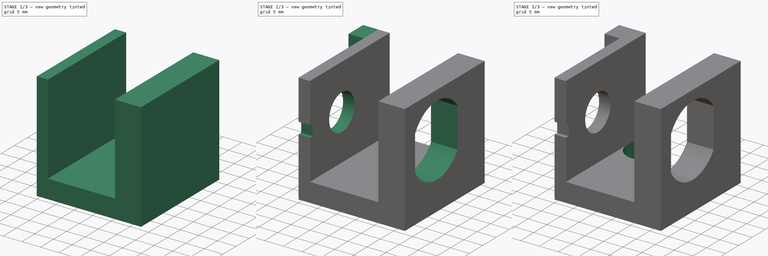
[diagram: build sequence overview — one tinted view per stage of 3, left to right]
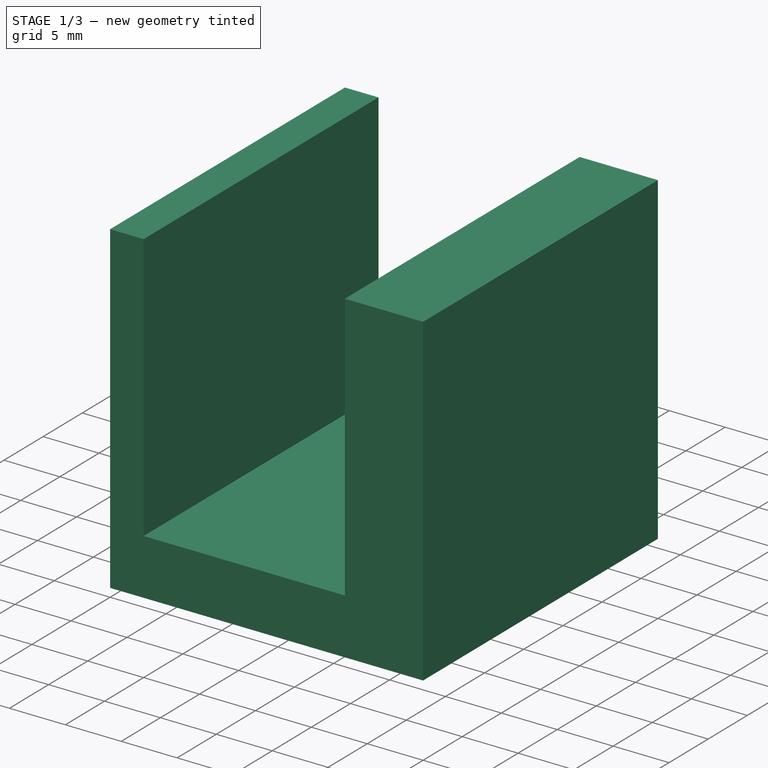
[diagram: stage 1 of 3 — iso view after this stage's code; geometry added in this stage tinted green]
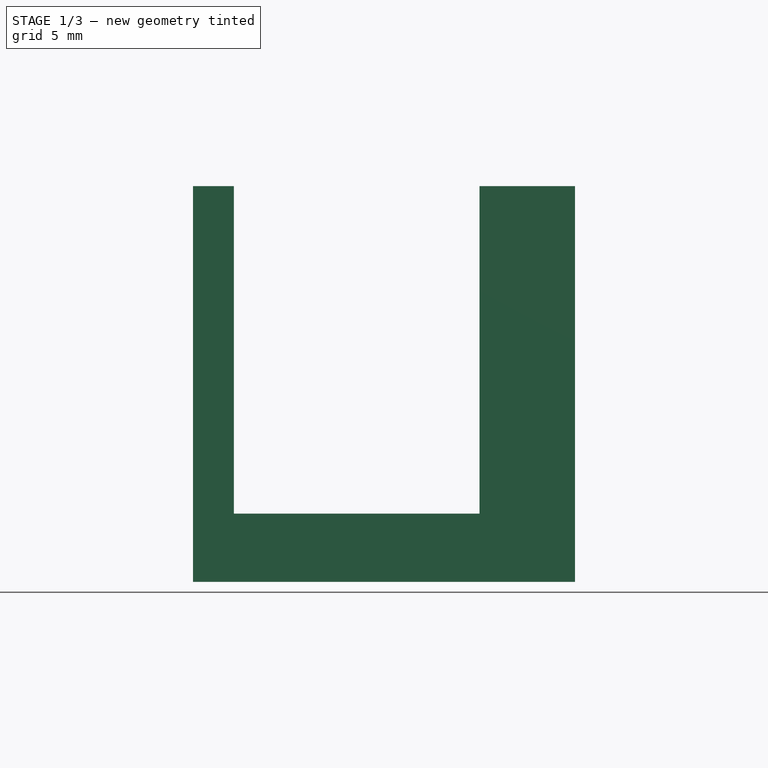
[diagram: stage 1 of 3 — front view after this stage's code; geometry added in this stage tinted green]
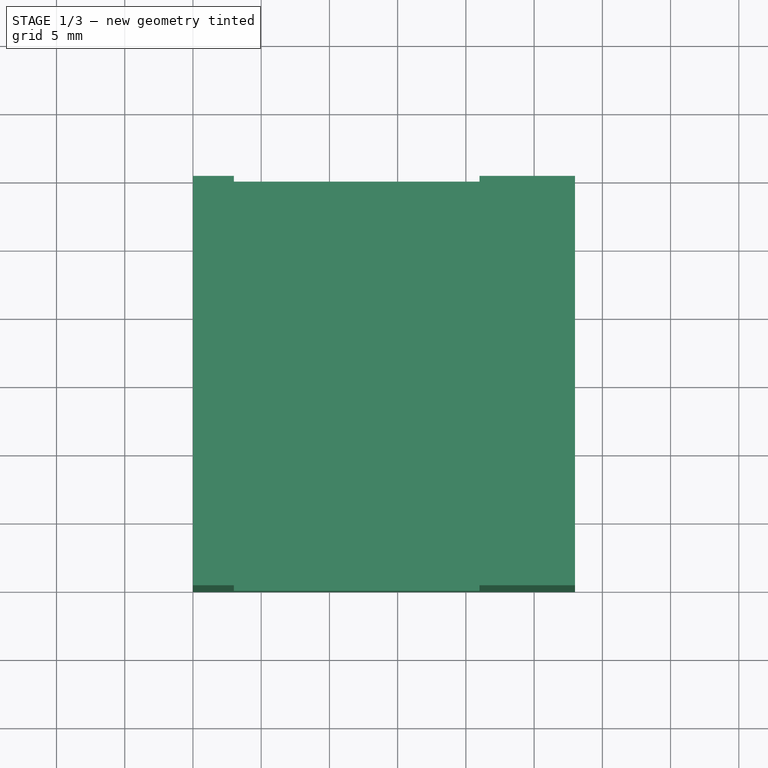
[diagram: stage 1 of 3 — top view after this stage's code; geometry added in this stage tinted green]
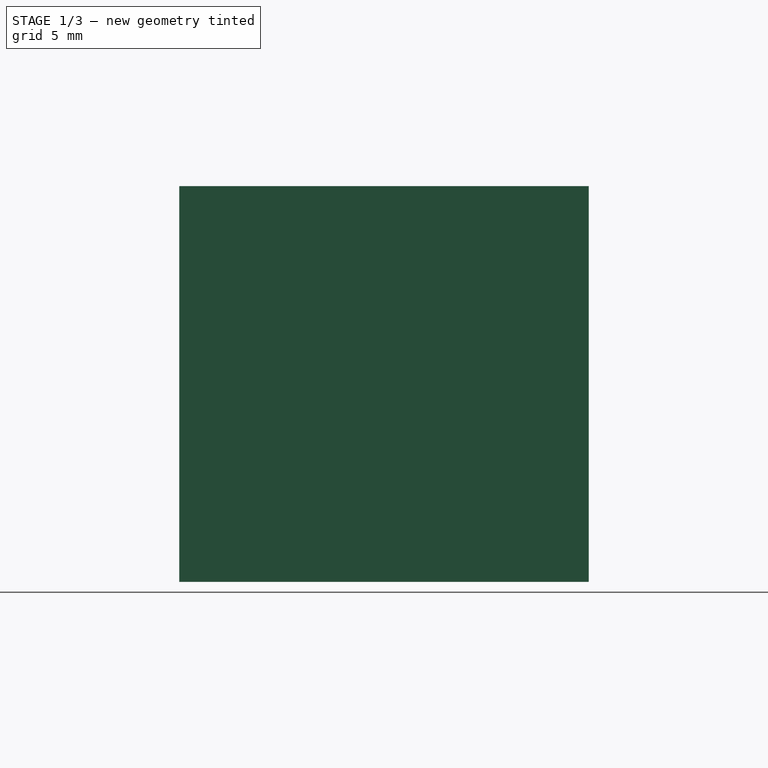
[diagram: stage 1 of 3 — right view after this stage's code; geometry added in this stage tinted green]
FCSTD DOCUMENT  (FreeCAD 0.16R6706 (Git))
Label: key_switch
License: All rights reserved
LicenseURL: http://en.wikipedia.org/wiki/All_rights_reserved
objects: Sketcher::SketchObject×6, PartDesign::Pocket×4, PartDesign::Pad×2, Part::Box×1
note: 19 computed .brp shape members not serialized (recipe doc carries the construction recipe); baked Part::Feature solids carry a one-line shape summary decoded from their .brp

FEATURE [Part::Box] Box  label="Cube"
  Height = 5
  Length = 28
  Width = 30
FEATURE [Sketcher::SketchObject] Sketch  label="Sketch (base)"
  ExternalGeometry = -> [Box]
  Placement = pos=(0,0,5) rot=(0,0,1;0rad)
  Support = -> Box [Face6]
  sketch-geometry (9):
    g0: LineSegment StartX=0 StartY=0 StartZ=0 EndX=3 EndY=0 EndZ=0
    g1: LineSegment StartX=0 StartY=30 StartZ=0 EndX=3 EndY=30 EndZ=0
    g2: LineSegment StartX=3 StartY=0 StartZ=0 EndX=3 EndY=30 EndZ=0
    g3: LineSegment StartX=0 StartY=0 StartZ=0 EndX=0 EndY=30 EndZ=0
    g4: LineSegment StartX=28 StartY=30 StartZ=0 EndX=21 EndY=30 EndZ=0
    g5: LineSegment StartX=21 StartY=30 StartZ=0 EndX=21 EndY=0 EndZ=0
    g6: LineSegment StartX=21 StartY=0 StartZ=0 EndX=28 EndY=0 EndZ=0
    g7: LineSegment StartX=28 StartY=0 StartZ=0 EndX=28 EndY=30 EndZ=0
    g8: LineSegment StartX=21 StartY=29.6495 StartZ=0 EndX=3 EndY=29.6495 EndZ=0
  constraints (25):
    c: Coincident(g0,g-1)
    c: Horizontal(g0)
    c: Coincident(g2,g0)
    c: Coincident(g2,g1)
    c: Vertical(g2)
    c: Horizontal(g1)
    c: Distance(g1) = 3
    c: Coincident(g3,g-1)
    c: Vertical(g3)
    c: Coincident(g1,g3)
    c: Coincident(g1,g-3)
    c: Coincident(g4,g5)
    c: Coincident(g5,g6)
    c: Coincident(g6,g7)
    c: Coincident(g7,g4)
    c: Horizontal(g4)
    c: Horizontal(g6)
    c: Vertical(g5)
    c: Vertical(g7)
    c: Coincident(g4,g-3)
    c: PointOnObject(g5,g-1)
    c: DistanceX(g4,g4) = 7
    c: PointOnObject(g8,g5)
    c: PointOnObject(g8,g2)
    c: Horizontal(g8)
FEATURE [PartDesign::Pad] Pad  label="Pad (base)"
  Length = 24
  Length2 = 100
  Sketch = -> Sketch
  Type = 0
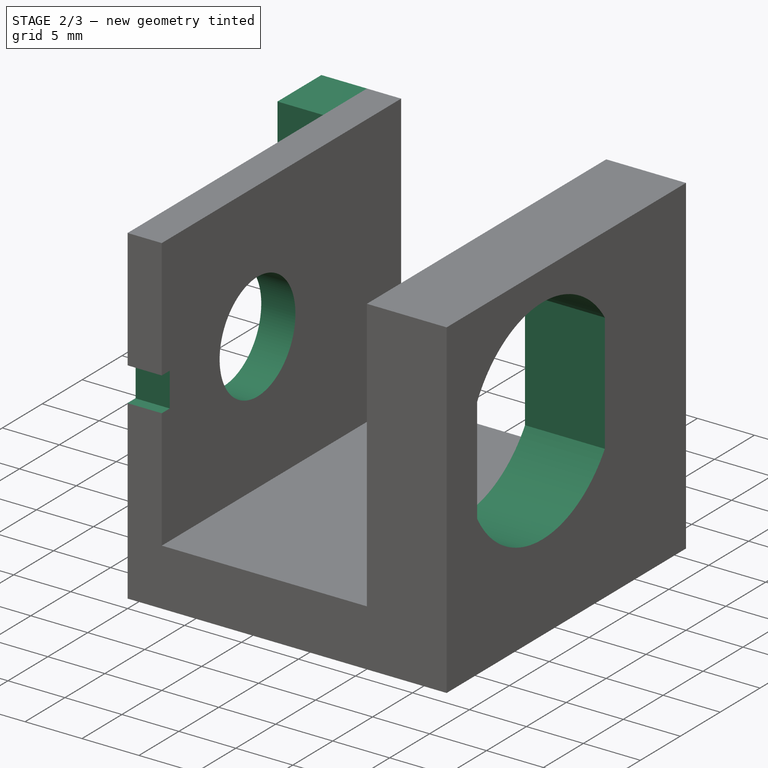
[diagram: stage 2 of 3 — iso view after this stage's code; geometry added in this stage tinted green]
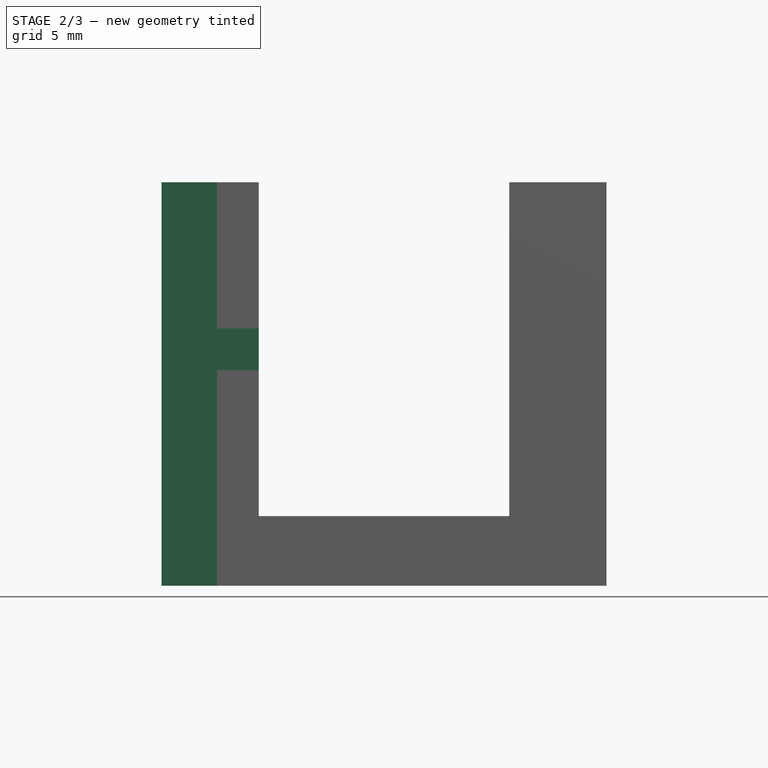
[diagram: stage 2 of 3 — front view after this stage's code; geometry added in this stage tinted green]
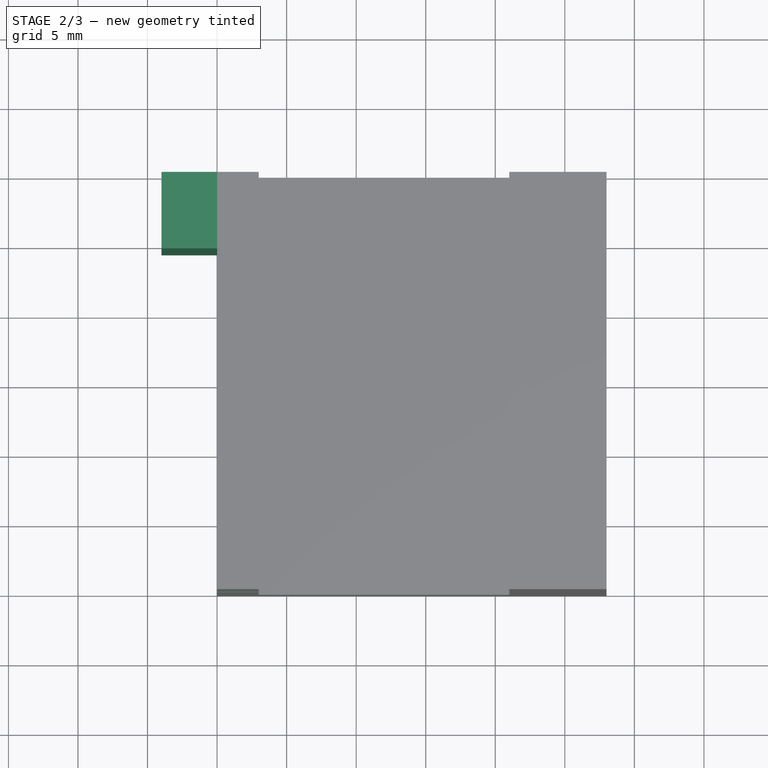
[diagram: stage 2 of 3 — top view after this stage's code; geometry added in this stage tinted green]
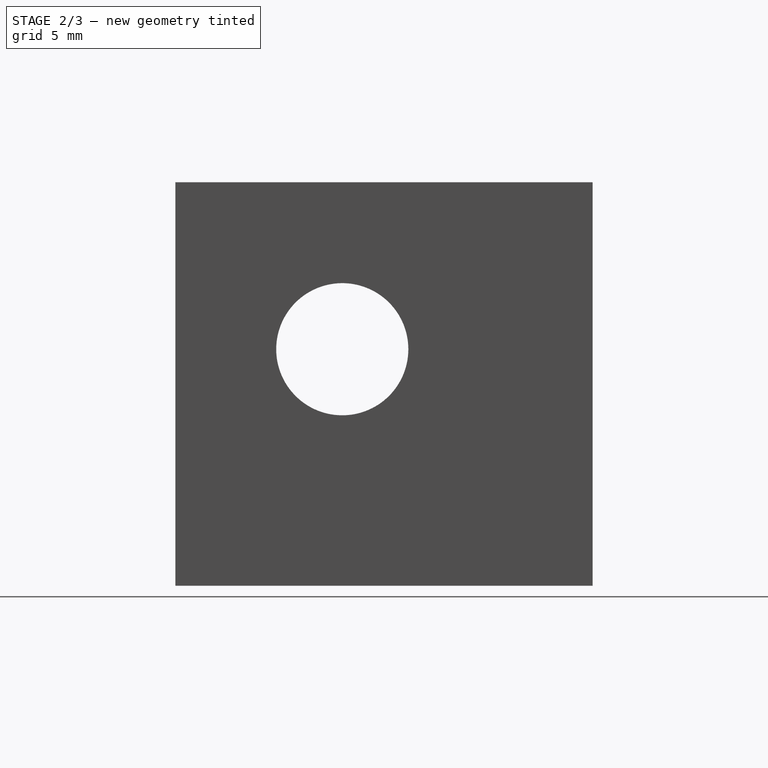
[diagram: stage 2 of 3 — right view after this stage's code; geometry added in this stage tinted green]
FEATURE [Sketcher::SketchObject] Sketch002  label="Sketch (switch mount)"
  ExternalGeometry = -> [Pad]
  Placement = pos=(0,0,0) rot=(0.57735,-0.57735,-0.57735;2.0944rad)
  Support = -> Pad [Face6]
  expr: Constraints[2] = 4.75
  sketch-geometry (6):
    g0: Circle [constr] CenterX=-12 CenterY=17 CenterZ=0 NormalX=0 NormalY=0 NormalZ=1 Radius=12
    g1: Circle CenterX=-12 CenterY=17 CenterZ=0 NormalX=0 NormalY=0 NormalZ=1 Radius=4.75
    g2: LineSegment StartX=-1 StartY=18.5 StartZ=0 EndX=0 EndY=18.5 EndZ=0
    g3: LineSegment StartX=0 StartY=18.5 StartZ=0 EndX=0 EndY=15.5 EndZ=0
    g4: LineSegment StartX=0 StartY=15.5 StartZ=0 EndX=-1 EndY=15.5 EndZ=0
    g5: LineSegment StartX=-1 StartY=15.5 StartZ=0 EndX=-1 EndY=18.5 EndZ=0
  constraints (17):
    c: Coincident(g1,g0)
    c: Radius(g0) = 12
    c: Radius(g1) = 4.75
    c: Tangent(g0,g-2)
    c: Coincident(g2,g3)
    c: Coincident(g3,g4)
    c: Coincident(g4,g5)
    c: Coincident(g5,g2)
    c: Horizontal(g2)
    c: Horizontal(g4)
    c: Vertical(g3)
    c: Vertical(g5)
    c: DistanceY(g3,g3) = 3
    c: Tangent(g3,g0)
    c: DistanceX(g2,g2) = 1
    c: DistanceY(g0,g2) = 1.5
    c: Tangent(g-3,g0)
FEATURE [PartDesign::Pocket] Pocket  label="Pocket (switch mount)"
  Length = 8
  Midplane = true
  Sketch = -> Sketch002
  Type = 0
FEATURE [Sketcher::SketchObject] Sketch001  label="Sketch (cabinet lock)"
  ExternalGeometry = -> [Pad]
  Placement = pos=(28,0,0) rot=(0.57735,0.57735,0.57735;2.0944rad)
  Support = -> Pocket [Face10]
  expr: Constraints[13] = 9.4
  sketch-geometry (5):
    g0: Circle [constr] CenterX=12 CenterY=17 CenterZ=0 NormalX=0 NormalY=0 NormalZ=1 Radius=12
    g1: LineSegment StartX=19.827 StartY=22.2055 StartZ=0 EndX=19.827 EndY=11.7945 EndZ=0
    g2: LineSegment StartX=3.82703 StartY=12.3565 StartZ=0 EndX=3.82703 EndY=21.6435 EndZ=0
    g3: ArcOfCircle CenterX=12 CenterY=17 CenterZ=0 NormalX=0 NormalY=0 NormalZ=1 Radius=9.4 StartAngle=0.586898 EndAngle=2.62492
    g4: ArcOfCircle CenterX=12 CenterY=17 CenterZ=0 NormalX=0 NormalY=0 NormalZ=1 Radius=9.4 StartAngle=3.65827 EndAngle=5.69629
  constraints (15):
    c: Radius(g0) = 12
    c: Tangent(g0,g-2)
    c: Tangent(g0,g-3)
    c: Vertical(g1)
    c: Vertical(g2)
    c: DistanceX(g2,g1) = 16
    c: DistanceY(g2,g2) = 9.28709
    c: Coincident(g3,g0)
    c: Coincident(g3,g2)
    c: Coincident(g3,g1)
    c: Coincident(g4,g0)
    c: Coincident(g4,g1)
    c: Coincident(g2,g4)
    c: Radius(g3) = 9.4
    c: Radius(g4) = 9.4
FEATURE [PartDesign::Pocket] Pocket001  label="Pocket (cabinet lock)"
  Length = 10
  Sketch = -> Sketch001
  Type = 0
FEATURE [Sketcher::SketchObject] Sketch003  label="Sketch (spring mount plate)"
  ExternalGeometry = -> [Pocket001]
  Placement = pos=(0,0,0) rot=(0.57735,-0.57735,-0.57735;2.0944rad)
  Support = -> Pocket001 [Face6]
  sketch-geometry (4):
    g0: LineSegment StartX=-30 StartY=0 StartZ=0 EndX=-24.5 EndY=0 EndZ=0
    g1: LineSegment StartX=-24.5 StartY=0 StartZ=0 EndX=-24.5 EndY=29 EndZ=0
    g2: LineSegment StartX=-24.5 StartY=29 StartZ=0 EndX=-30 EndY=29 EndZ=0
    g3: LineSegment StartX=-30 StartY=29 StartZ=0 EndX=-30 EndY=0 EndZ=0
  constraints (7):
    c: Horizontal(g0)
    c: Horizontal(g2)
    c: Vertical(g1)
    c: Vertical(g3)
    c: Coincident(g0,g-3)
    c: Coincident(g-4,g2)
    c: DistanceX(g2,g2) = 5.5
FEATURE [PartDesign::Pad] Pad001  label="Pad (sprint mount plate)"
  Length = 4
  Length2 = 100
  Sketch = -> Sketch003
  Type = 0
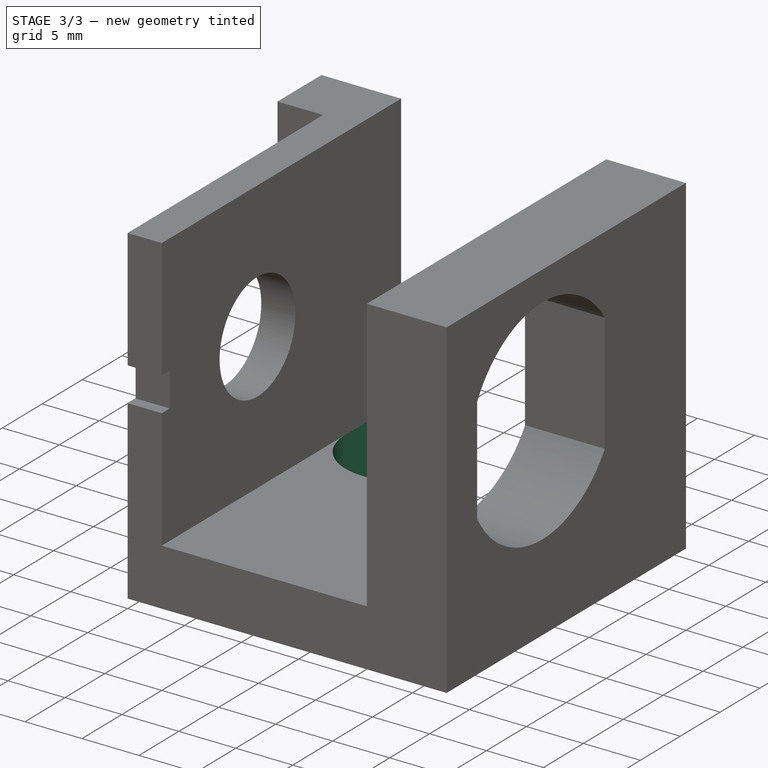
[diagram: stage 3 of 3 — iso view after this stage's code; geometry added in this stage tinted green]
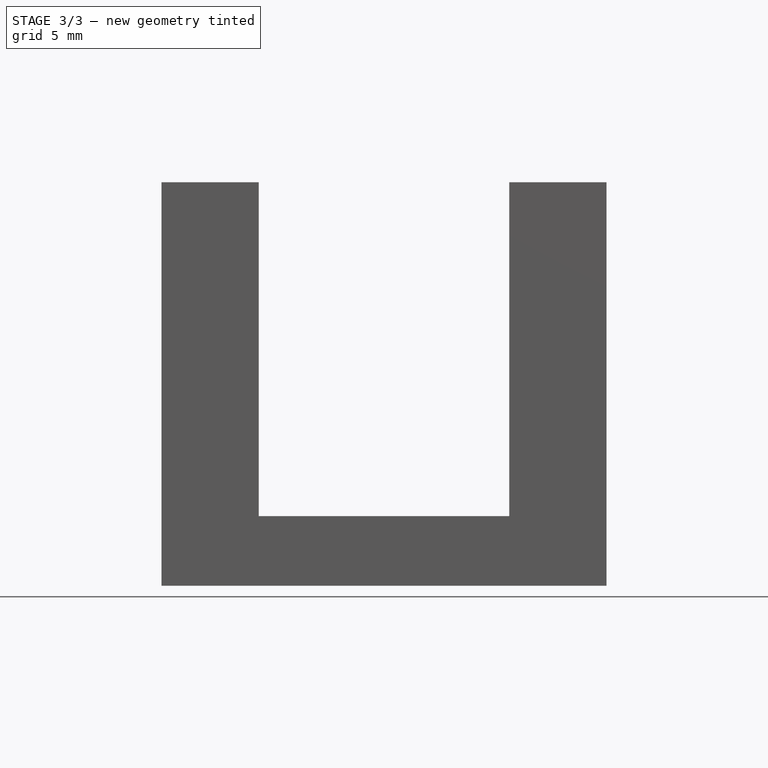
[diagram: stage 3 of 3 — front view after this stage's code; geometry added in this stage tinted green]
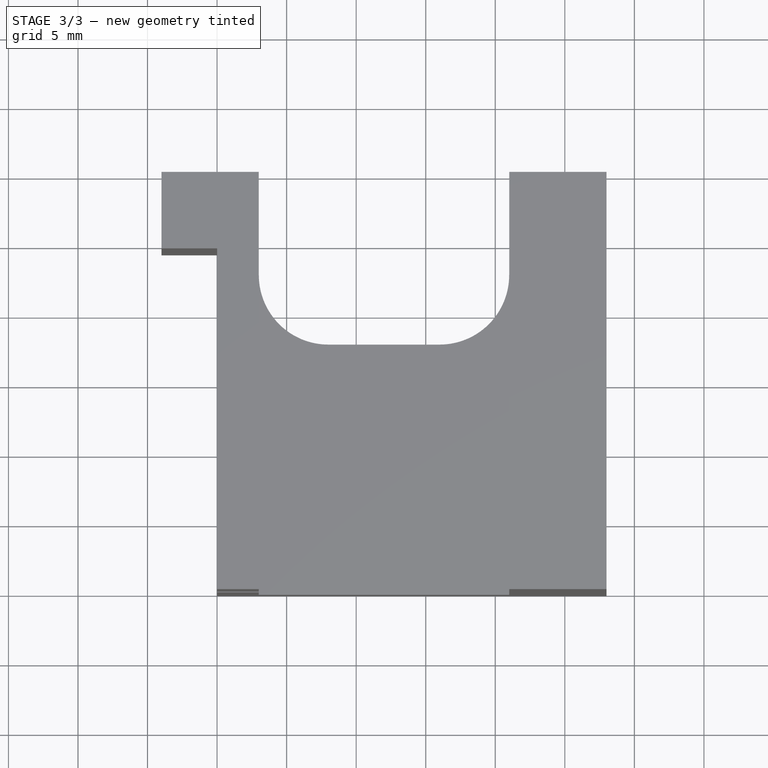
[diagram: stage 3 of 3 — top view after this stage's code; geometry added in this stage tinted green]
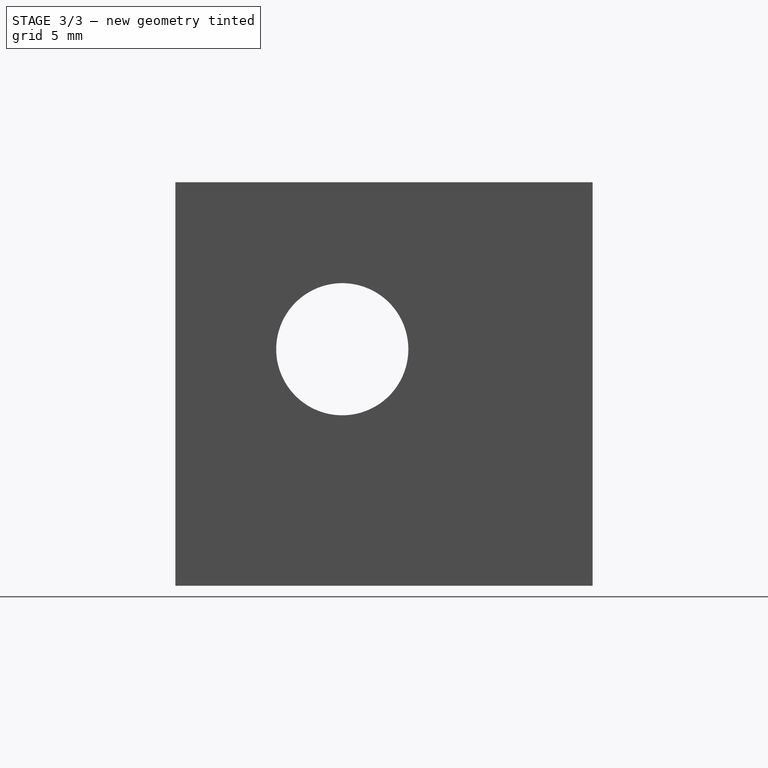
[diagram: stage 3 of 3 — right view after this stage's code; geometry added in this stage tinted green]
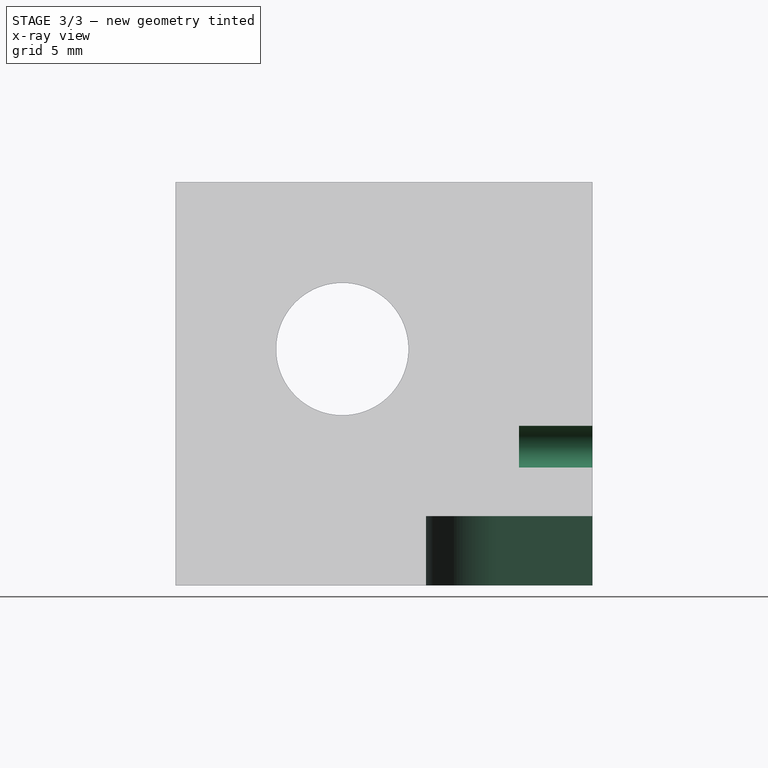
[diagram: stage 3 of 3 — x-ray composite at the right view; earlier geometry ghosted, this stage's added geometry solid]
FEATURE [Sketcher::SketchObject] Sketch004  label="Sketch (spring mount holes)"
  ExternalGeometry = -> [Pad001]
  Placement = pos=(0,30,0) rot=(0,0.707107,0.707107;3.14159rad)
  Support = -> Pad001 [Face20]
  sketch-geometry (2):
    g0: Circle CenterX=-24.5 CenterY=10 CenterZ=0 NormalX=0 NormalY=0 NormalZ=1 Radius=1.5
    g1: Circle CenterX=0.5 CenterY=10 CenterZ=0 NormalX=0 NormalY=0 NormalZ=1 Radius=1.5
  constraints (6):
    c: Equal(g0,g1)
    c: DistanceX(g-3,g0) = 3.5
    c: DistanceX(g1,g-4) = 3.5
    c: DistanceY(g-4,g1) = 10
    c: DistanceY(g-3,g0) = 10
    c: Radius(g1) = 1.5
FEATURE [PartDesign::Pocket] Pocket002  label="Pocket (sprint mount holes)"
  Length = 5.3
  Sketch = -> Sketch004
  Type = 0
FEATURE [Sketcher::SketchObject] Sketch005  label="Sketch (arm cutout)"
  ExternalGeometry = -> [Pocket002]
  Placement = pos=(0,0,5) rot=(0,0,1;0rad)
  Support = -> Pocket002 [Face7]
  sketch-geometry (6):
    g0: LineSegment StartX=21 StartY=30 StartZ=0 EndX=3 EndY=30 EndZ=0
    g1: LineSegment StartX=3 StartY=30 StartZ=0 EndX=3 EndY=23 EndZ=0
    g2: LineSegment StartX=8 StartY=18 StartZ=0 EndX=16 EndY=18 EndZ=0
    g3: LineSegment StartX=21 StartY=23 StartZ=0 EndX=21 EndY=30 EndZ=0
    g4: ArcOfCircle CenterX=8 CenterY=23 CenterZ=0 NormalX=0 NormalY=0 NormalZ=1 Radius=5 StartAngle=3.14159 EndAngle=4.71239
    g5: ArcOfCircle CenterX=16 CenterY=23 CenterZ=0 NormalX=0 NormalY=0 NormalZ=1 Radius=5 StartAngle=4.71239 EndAngle=6.28319
  constraints (15):
    c: Horizontal(g0)
    c: Horizontal(g2)
    c: Vertical(g1)
    c: Vertical(g3)
    c: Tangent(g1,g4) = -1.5708
    c: Tangent(g2,g4) = -1.5708
    c: Tangent(g3,g5) = -1.5708
    c: Tangent(g2,g5) = -1.5708
    c: DistanceY(g2,g0) = 12
    c: Equal(g4,g5)
    c: DistanceX(g0,g2) = 5
    c: Coincident(g1,g0)
    c: Coincident(g0,g-3)
    c: Coincident(g3,g0)
    c: Coincident(g0,g-3)
FEATURE [PartDesign::Pocket] Pocket003  label="Pocket (arm cutout)"
  Length = 5
  Sketch = -> Sketch005
  Type = 0
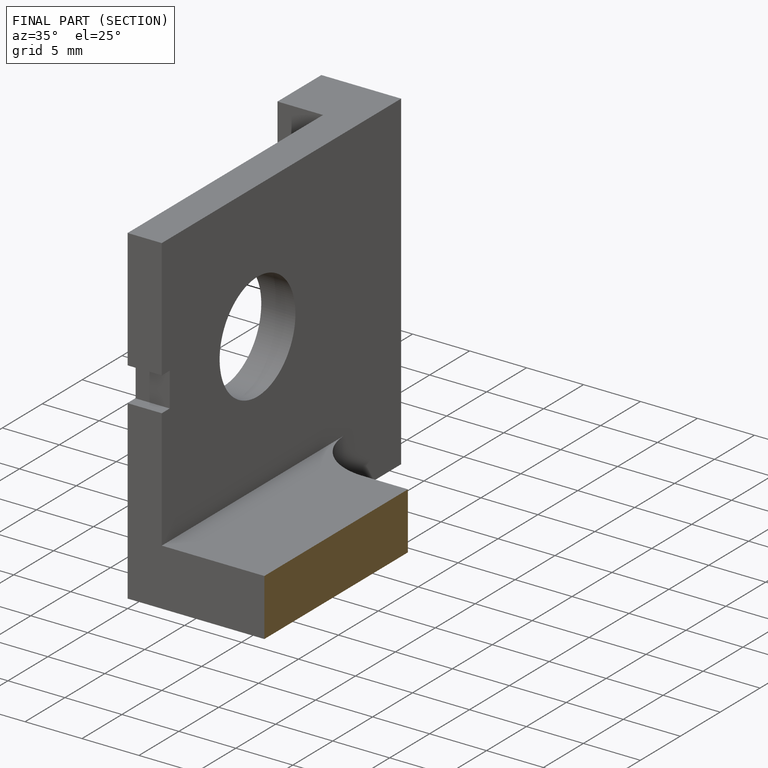
[diagram: finished part — half-section view (interior)]
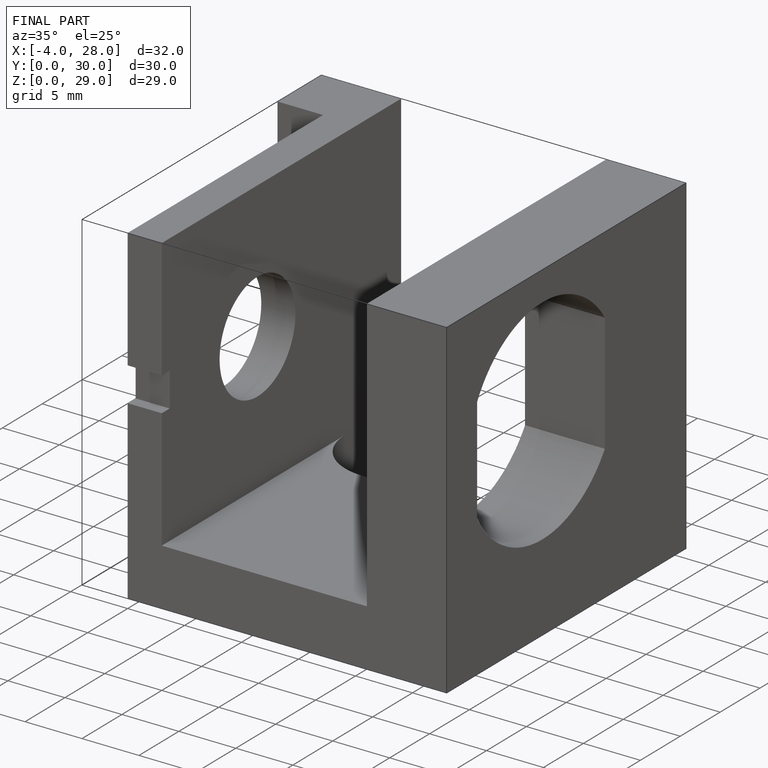
[diagram: finished part — iso view with bounding-box wireframe]
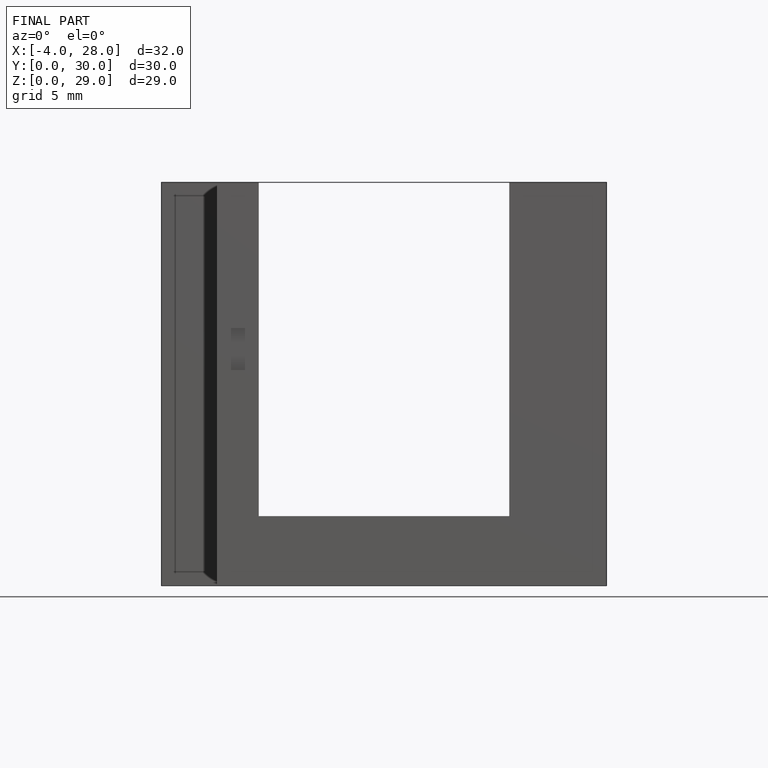
[diagram: finished part — front view with bounding-box wireframe]
